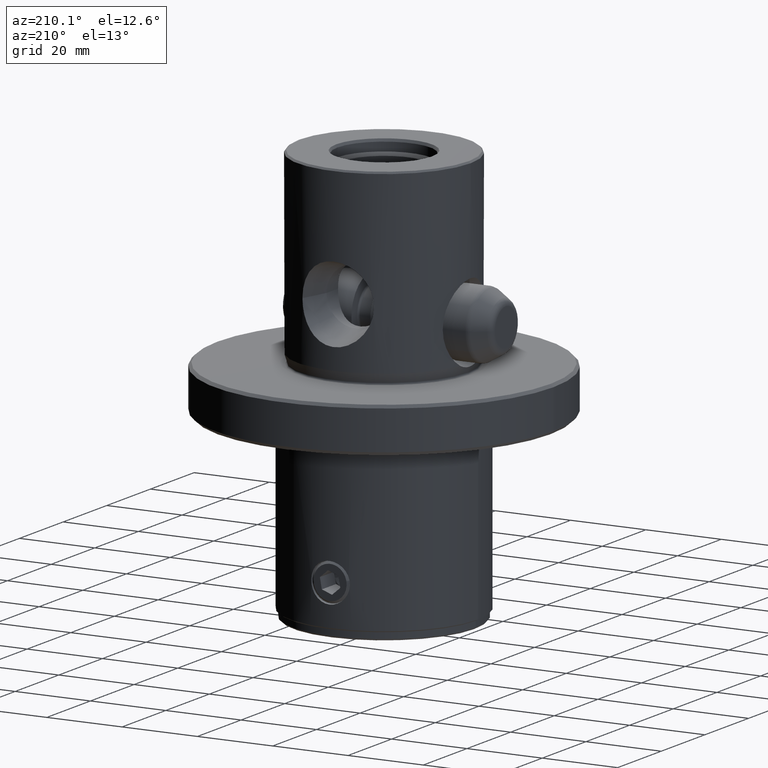
[diagram: clean part render]
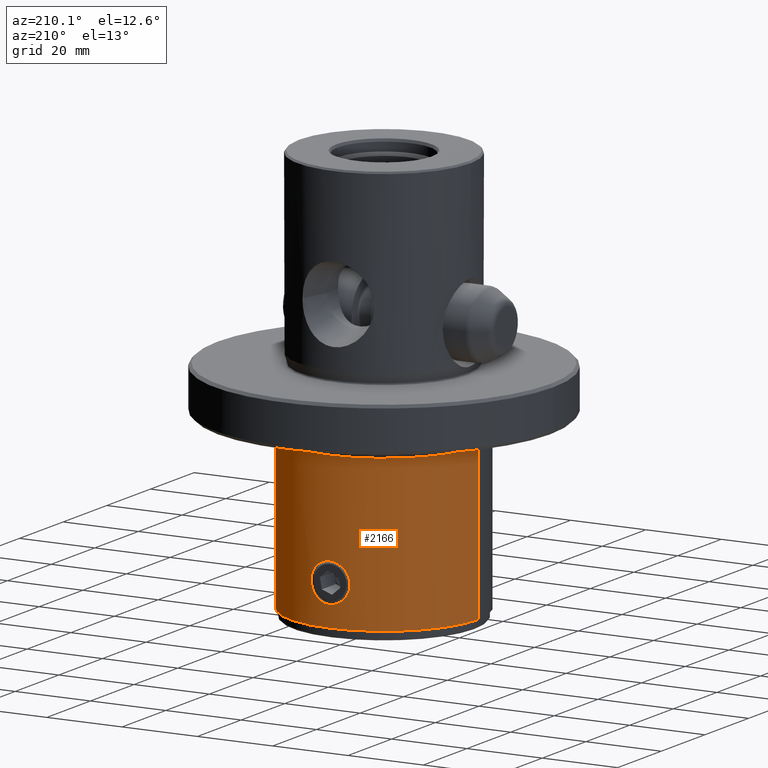
[diagram: same view with one face highlighted and labeled with its STEP entity id]
A machine part, auxiliary view. The second image highlights one B-rep face of the part: STEP entity #2166.
In plain terms, the highlighted cylindrical surface (partial cylindrical patch) has radius 25 mm, axis along (-0, -0, 1).
Its self-contained STEP definition (entity closure, byte-faithful):
#932=EDGE_CURVE('NONE',#1504,#940,#2500,.T.);
#940=VERTEX_POINT('NONE',#2510);
#1182=VERTEX_POINT('NONE',#2780);
#1212=EDGE_CURVE('NONE',#1398,#1504,#2815,.T.);
#1318=VERTEX_POINT('NONE',#2927);
#1398=VERTEX_POINT('NONE',#3017);
#1436=VERTEX_POINT('NONE',#3063);
#1504=VERTEX_POINT('NONE',#3138);
#1992=EDGE_CURVE('NONE',#1398,#1182,#3694,.T.);
#1996=EDGE_CURVE('NONE',#1182,#940,#3698,.T.);
#2048=EDGE_CURVE('NONE',#1318,#1436,#3752,.T.);
#2106=EDGE_CURVE('NONE',#1436,#1318,#3818,.T.);
#2166=ADVANCED_FACE('NONE',(#3880,#3881),#3882,.T.);
#2500=CIRCLE('',#4350,25.0);
#2510=CARTESIAN_POINT('',(25.0,0.0,-16.9));
#2780=CARTESIAN_POINT('',(25.0,-2.77555756156289E-014,-57.6535898384862));
#2815=LINE('',#4870,#4871);
#2927=CARTESIAN_POINT('',(2.80222264227481E-014,25.0,-41.8));
#3017=CARTESIAN_POINT('',(-25.0,3.08170915001849E-014,-57.6535898384862));
#3063=CARTESIAN_POINT('',(2.83862487806288E-014,25.0,-52.1));
#3138=CARTESIAN_POINT('',(-25.0,3.08170915001849E-014,-16.9));
#3694=CIRCLE('',#6355,25.0);
#3698=LINE('',#6361,#6362);
#3752=B_SPLINE_CURVE_WITH_KNOTS('',3,(#6530,#6531,#6532,#6533,#6534,#6535,#6536,#6537,#6538,#6539,#6540,#6541,#6542,#6543,#6544,#6545,#6546,#6547,#6548,#6549,#6550,#6551,#6552,#6553,#6554,#6555,#6556,#6557,#6558,#6559,#6560,#6561,#6562,#6563,#6564,#6565,#6566,#6567,#6568,#6569),.UNSPECIFIED.,.F.,.F.,(4,2,2,2,2,2,2,2,2,2,2,2,2,2,2,2,2,2,2,4),(2.59030405516881E-019,0.00100903392482542,0.00151355088723812,0.00201806784965083,0.00302710177447623,0.00403613569930164,0.00504516962412704,0.00605420354895244,0.00655872051136515,0.00706323747377785,0.00807227139860327,0.0090813053234287,0.0100903392482541,0.0105948562106668,0.0110993731730795,0.012108407097905,0.0131174410227304,0.0141264749475558,0.0151355088723812,0.0161445427972067),.UNSPECIFIED.);
#3818=B_SPLINE_CURVE_WITH_KNOTS('',3,(#6705,#6706,#6707,#6708,#6709,#6710,#6711,#6712,#6713,#6714,#6715,#6716,#6717,#6718,#6719,#6720,#6721,#6722,#6723,#6724,#6725,#6726,#6727,#6728,#6729,#6730,#6731,#6732,#6733,#6734,#6735,#6736,#6737,#6738,#6739,#6740,#6741,#6742,#6743,#6744),.UNSPECIFIED.,.F.,.F.,(4,2,2,2,2,2,2,2,2,2,2,2,2,2,2,2,2,2,2,4),(0.0161445427972067,0.0171533144572505,0.0181620861172943,0.0186664719473162,0.0191708577773381,0.0201796294373819,0.0211884010974257,0.0221971727574696,0.0227015585874915,0.0232059444175134,0.0242147160775572,0.025223487737601,0.0262322593976448,0.0272410310576886,0.0277454168877105,0.0282498027177324,0.0292585743777762,0.03026734603782,0.0312761176978639,0.0322848893579077),.UNSPECIFIED.);
#3880=FACE_OUTER_BOUND('',#6844,.T.);
#3881=FACE_BOUND('',#6845,.T.);
#3882=CYLINDRICAL_SURFACE('',#6846,25.0);
#4350=AXIS2_PLACEMENT_3D('',#7351,#7352,#7353);
#4870=CARTESIAN_POINT('',(-25.0,3.08170915001849E-014,-60.0));
#4871=VECTOR('',#7769,1000.0);
#6355=AXIS2_PLACEMENT_3D('',#8877,#8878,#8879);
#6361=CARTESIAN_POINT('',(25.0,-2.77555756156289E-014,-60.0));
#6362=VECTOR('',#8883,1000.0);
#6530=CARTESIAN_POINT('',(2.80222264227481E-014,25.0,-41.8));
#6531=CARTESIAN_POINT('',(-0.34125623247523,25.0,-41.8));
#6532=CARTESIAN_POINT('',(-0.676629517757858,24.9930208156288,-41.833582275029));
#6533=CARTESIAN_POINT('',(-1.1712668715141,24.9730927833215,-41.9321420530401));
#6534=CARTESIAN_POINT('',(-1.33473200180496,24.9648720547877,-41.9730868737121));
#6535=CARTESIAN_POINT('',(-1.6587800965668,24.9454363525634,-42.0715143359344));
#6536=CARTESIAN_POINT('',(-1.819596022598,24.9341834569268,-42.1292074259618));
#6537=CARTESIAN_POINT('',(-2.28707447392066,24.8971289057048,-42.323373447082));
#6538=CARTESIAN_POINT('',(-2.58254942620964,24.8678435831056,-42.4816626327342));
#6539=CARTESIAN_POINT('',(-3.14171976550904,24.8034030513482,-42.855467391566));
#6540=CARTESIAN_POINT('',(-3.40573250476867,24.7680899016421,-43.0724113462139));
#6541=CARTESIAN_POINT('',(-3.87933588261754,24.6983409236268,-43.5462578282361));
#6542=CARTESIAN_POINT('',(-4.09217402565409,24.6635482900034,-43.8049709263107));
#6543=CARTESIAN_POINT('',(-4.46864414095405,24.5981243604281,-44.3676917937423));
#6544=CARTESIAN_POINT('',(-4.62800823364649,24.5682454091978,-44.6660417258091));
#6545=CARTESIAN_POINT('',(-4.82081594203218,24.5308788943112,-45.1305660068899));
#6546=CARTESIAN_POINT('',(-4.87759712201441,24.5196158100533,-45.2886678848655));
#6547=CARTESIAN_POINT('',(-4.97589371472992,24.4998570382974,-45.6115457343742));
#6548=CARTESIAN_POINT('',(-5.01757379302299,24.4913269994719,-45.7773051973374));
#6549=CARTESIAN_POINT('',(-5.1169925076,24.47081869352,-46.2762588392728));
#6550=CARTESIAN_POINT('',(-5.14986645176447,24.4638279005454,-46.6110519260857));
#6551=CARTESIAN_POINT('',(-5.15013274391554,24.4637718420231,-47.2848775714622));
#6552=CARTESIAN_POINT('',(-5.11640084110404,24.4709415536383,-47.6272044315606));
#6553=CARTESIAN_POINT('',(-4.98444804431156,24.4981594366188,-48.288447272975));
#6554=CARTESIAN_POINT('',(-4.88686384419319,24.5180741022516,-48.6099334791446));
#6555=CARTESIAN_POINT('',(-4.69263863559251,24.5557221766036,-49.0784318129696));
#6556=CARTESIAN_POINT('',(-4.61954992463582,24.5696217667694,-49.2326956253864));
#6557=CARTESIAN_POINT('',(-4.460313100709,24.5990276700514,-49.5300286564309));
#6558=CARTESIAN_POINT('',(-4.37388178931773,24.6145910117225,-49.6739147137454));
#6559=CARTESIAN_POINT('',(-4.09453235166202,24.6631412262585,-50.0915788896556));
#6560=CARTESIAN_POINT('',(-3.88051469928113,24.6981801005803,-50.3527327700761));
#6561=CARTESIAN_POINT('',(-3.40195970517333,24.7686326787818,-50.831192445662));
#6562=CARTESIAN_POINT('',(-3.14285274899285,24.8032473974291,-51.0435673224243));
#6563=CARTESIAN_POINT('',(-2.58581411468495,24.8674922383464,-51.4163611799056));
#6564=CARTESIAN_POINT('',(-2.284184692337,24.8973889696849,-51.578016069498));
#6565=CARTESIAN_POINT('',(-1.66170537057792,24.9466673621526,-51.8361813013468));
#6566=CARTESIAN_POINT('',(-1.34061210673809,24.9662280177269,-51.933898321652));
#6567=CARTESIAN_POINT('',(-0.678484530245686,24.9929878365129,-52.0662625072914));
#6568=CARTESIAN_POINT('',(-0.336614175835609,25.0,-52.1));
#6569=CARTESIAN_POINT('',(2.83862487806288E-014,25.0,-52.1));
#6705=CARTESIAN_POINT('',(2.83862487806288E-014,25.0,-52.1));
#6706=CARTESIAN_POINT('',(0.336526684185347,25.0,-52.1));
#6707=CARTESIAN_POINT('',(0.671656614067036,24.9932072079719,-52.0673369614826));
#6708=CARTESIAN_POINT('',(1.33903593066089,24.9663475887892,-51.9345002719406));
#6709=CARTESIAN_POINT('',(1.66239287999457,24.9466060469542,-51.8358541350467));
#6710=CARTESIAN_POINT('',(2.12739630269127,24.9098045116505,-51.6430629817208));
#6711=CARTESIAN_POINT('',(2.27933926572697,24.8963245794504,-51.5712118887488));
#6712=CARTESIAN_POINT('',(2.57702412113751,24.8672739103566,-51.4120548504107));
#6713=CARTESIAN_POINT('',(2.7232511328969,24.8516355175672,-51.3243350810768));
#6714=CARTESIAN_POINT('',(3.14350590610106,24.8031834477276,-51.0432245425534));
#6715=CARTESIAN_POINT('',(3.4021210939078,24.7685928025046,-50.8308170117764));
#6716=CARTESIAN_POINT('',(3.877078655753,24.6987019588277,-50.3563807352687));
#6717=CARTESIAN_POINT('',(4.09407161854858,24.6632190378601,-50.092206629744));
#6718=CARTESIAN_POINT('',(4.46687902998897,24.5984305893428,-49.5349326206415));
#6719=CARTESIAN_POINT('',(4.62540842931579,24.5687425727719,-49.2396781688818));
#6720=CARTESIAN_POINT('',(4.82029902315621,24.5309823695187,-48.7709474569903));
#6721=CARTESIAN_POINT('',(4.87795374407301,24.5195447722371,-48.6102807114369));
#6722=CARTESIAN_POINT('',(4.97616027611986,24.4998028047864,-48.2874579157685));
#6723=CARTESIAN_POINT('',(5.01711690849592,24.4914202953943,-48.1244093672671));
#6724=CARTESIAN_POINT('',(5.11589135119256,24.4710477160147,-47.6304068081331));
#6725=CARTESIAN_POINT('',(5.14983605804856,24.4638342988806,-47.2924504411412));
#6726=CARTESIAN_POINT('',(5.15016275307809,24.4637655246422,-46.6124983759713));
#6727=CARTESIAN_POINT('',(5.11698723737772,24.4708176268719,-46.2775561975297));
#6728=CARTESIAN_POINT('',(4.9859748325698,24.4978474296027,-45.6174107819933));
#6729=CARTESIAN_POINT('',(4.88640429828058,24.5181625554925,-45.2890090599359));
#6730=CARTESIAN_POINT('',(4.62858529570378,24.5681387212015,-44.6670116010753));
#6731=CARTESIAN_POINT('',(4.47065333090455,24.5977506481866,-44.3713594958389));
#6732=CARTESIAN_POINT('',(4.18995292767451,24.646567996432,-43.9507998603663));
#6733=CARTESIAN_POINT('',(4.08850731926381,24.6636539657701,-43.8139193971852));
#6734=CARTESIAN_POINT('',(3.87476182591193,24.698136363608,-43.553367190955));
#6735=CARTESIAN_POINT('',(3.76215765819474,24.7155912716941,-43.4291104838979));
#6736=CARTESIAN_POINT('',(3.40746263860867,24.7678486547522,-43.0739619086845));
#6737=CARTESIAN_POINT('',(3.14815028252239,24.8026133831051,-42.8601690881079));
#6738=CARTESIAN_POINT('',(2.58450896330462,24.8676656373638,-42.4825756293126));
#6739=CARTESIAN_POINT('',(2.28858383942585,24.8969653507792,-42.3242686074878));
#6740=CARTESIAN_POINT('',(1.66924540611771,24.9461443802872,-42.0664944271652));
#6741=CARTESIAN_POINT('',(1.34238926354209,24.9661485900749,-41.966495998146));
#6742=CARTESIAN_POINT('',(0.677847849237441,24.9930211589126,-41.8335712293972));
#6743=CARTESIAN_POINT('',(0.341167534276864,25.0,-41.8));
#6744=CARTESIAN_POINT('',(2.80222264227481E-014,25.0,-41.8));
#6844=EDGE_LOOP('',(#9072,#9073,#9074,#9075));
#6845=EDGE_LOOP('',(#9076,#9077));
#6846=AXIS2_PLACEMENT_3D('',#9078,#9079,#9080);
#7351=CARTESIAN_POINT('',(0.0,0.0,-16.9));
#7352=DIRECTION('',(0.0,0.0,-1.0));
#7353=DIRECTION('',(1.0,0.0,0.0));
#7769=DIRECTION('',(0.0,0.0,1.0));
#8877=CARTESIAN_POINT('',(0.0,0.0,-57.6535898384862));
#8878=DIRECTION('',(0.0,0.0,-1.0));
#8879=DIRECTION('',(1.0,-1.11022302462516E-015,0.0));
#8883=DIRECTION('',(0.0,0.0,1.0));
#9072=ORIENTED_EDGE('',*,*,#1992,.F.);
#9073=ORIENTED_EDGE('',*,*,#1212,.T.);
#9074=ORIENTED_EDGE('',*,*,#932,.T.);
#9075=ORIENTED_EDGE('',*,*,#1996,.F.);
#9076=ORIENTED_EDGE('',*,*,#2048,.T.);
#9077=ORIENTED_EDGE('',*,*,#2106,.T.);
#9078=CARTESIAN_POINT('',(0.0,0.0,-60.0));
#9079=DIRECTION('',(-0.0,-0.0,1.0));
#9080=DIRECTION('',(1.0,-1.11022302462516E-015,0.0));